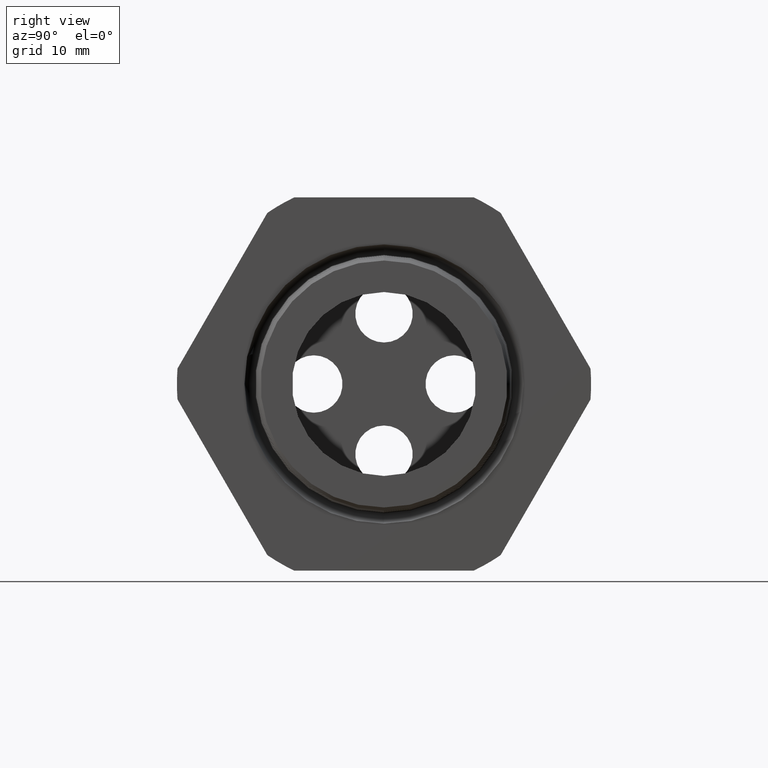
[diagram: clean part render]
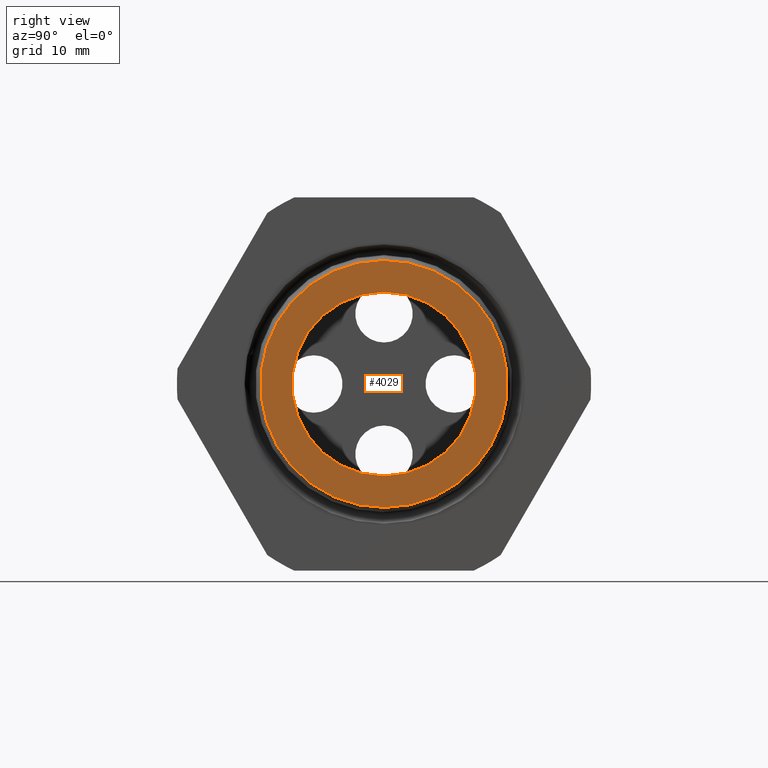
[diagram: same view with one face highlighted and labeled with its STEP entity id]
A machine part, right view. The second image highlights one B-rep face of the part: STEP entity #4029.
In plain terms, the highlighted planar face has unit normal (1, 0, 0).
Its self-contained STEP definition (entity closure, byte-faithful):
#41 = VERTEX_POINT ( 'NONE', #1183 ) ;
#45 = VERTEX_POINT ( 'NONE', #1177 ) ;
#55 = EDGE_CURVE ( 'NONE', #45, #41, #1226, .T. ) ;
#1177 = CARTESIAN_POINT ( 'NONE',  ( 0.1200000000000000200, 5.332067285935767100E-017, -0.4301292403640452600 ) ) ;
#1183 = CARTESIAN_POINT ( 'NONE',  ( 0.1200000000000000200, 0.0000000000000000000, 0.4301292403640452600 ) ) ;
#1223 = DIRECTION ( 'NONE',  ( 0.0000000000000000000, 0.0000000000000000000, -1.000000000000000000 ) ) ;
#1224 = DIRECTION ( 'NONE',  ( 1.000000000000000000, 0.0000000000000000000, 0.0000000000000000000 ) ) ;
#1225 = AXIS2_PLACEMENT_3D ( 'NONE', #1231, #1224, #1223 ) ;
#1226 = CIRCLE ( 'NONE', #1225, 0.4301292403640452600 ) ;
#1231 = CARTESIAN_POINT ( 'NONE',  ( 0.1200000000000000200, 0.0000000000000000000, 0.0000000000000000000 ) ) ;
#3279 = DIRECTION ( 'NONE',  ( 0.0000000000000000000, 0.0000000000000000000, -1.000000000000000000 ) ) ;
#3280 = DIRECTION ( 'NONE',  ( 1.000000000000000000, 0.0000000000000000000, 0.0000000000000000000 ) ) ;
#3281 = CARTESIAN_POINT ( 'NONE',  ( 0.1200000000000000200, 0.3204016610924743100, 0.0000000000000000000 ) ) ;
#3282 = AXIS2_PLACEMENT_3D ( 'NONE', #3281, #3280, #3279 ) ;
#3283 = FACE_BOUND ( 'NONE', #5562, .T. ) ;
#3284 = FACE_OUTER_BOUND ( 'NONE', #4028, .T. ) ;
#3289 = PLANE ( 'NONE',  #3282 ) ;
#4028 = EDGE_LOOP ( 'NONE', ( #5565, #5567 ) ) ;
#4029 = ADVANCED_FACE ( 'NONE', ( #3284, #3283 ), #3289, .T. ) ;
#4674 = CARTESIAN_POINT ( 'NONE',  ( 0.1200000000000000200, 4.135642411978520400E-017, -0.3204016610924743100 ) ) ;
#4702 = DIRECTION ( 'NONE',  ( 0.0000000000000000000, 0.0000000000000000000, -1.000000000000000000 ) ) ;
#4703 = DIRECTION ( 'NONE',  ( 1.000000000000000000, 0.0000000000000000000, 0.0000000000000000000 ) ) ;
#4704 = AXIS2_PLACEMENT_3D ( 'NONE', #4710, #4703, #4702 ) ;
#4705 = CIRCLE ( 'NONE', #4704, 0.3204016610924743100 ) ;
#4710 = CARTESIAN_POINT ( 'NONE',  ( 0.1200000000000000200, 0.0000000000000000000, 0.0000000000000000000 ) ) ;
#4715 = CARTESIAN_POINT ( 'NONE',  ( 0.1200000000000000200, 0.0000000000000000000, 0.3204016610924743100 ) ) ;
#4724 = DIRECTION ( 'NONE',  ( 0.0000000000000000000, 0.0000000000000000000, -1.000000000000000000 ) ) ;
#4725 = DIRECTION ( 'NONE',  ( 1.000000000000000000, 0.0000000000000000000, 0.0000000000000000000 ) ) ;
#4726 = CARTESIAN_POINT ( 'NONE',  ( 0.1200000000000000200, 0.0000000000000000000, 0.0000000000000000000 ) ) ;
#4727 = AXIS2_PLACEMENT_3D ( 'NONE', #4726, #4725, #4724 ) ;
#4728 = CIRCLE ( 'NONE', #4727, 0.3204016610924743100 ) ;
#4794 = DIRECTION ( 'NONE',  ( 0.0000000000000000000, 0.0000000000000000000, -1.000000000000000000 ) ) ;
#4795 = DIRECTION ( 'NONE',  ( 1.000000000000000000, 0.0000000000000000000, 0.0000000000000000000 ) ) ;
#4796 = CARTESIAN_POINT ( 'NONE',  ( 0.1200000000000000200, 0.0000000000000000000, 0.0000000000000000000 ) ) ;
#4797 = AXIS2_PLACEMENT_3D ( 'NONE', #4796, #4795, #4794 ) ;
#4802 = CIRCLE ( 'NONE', #4797, 0.4301292403640452600 ) ;
#5493 = VERTEX_POINT ( 'NONE', #4674 ) ;
#5502 = VERTEX_POINT ( 'NONE', #4715 ) ;
#5507 = EDGE_CURVE ( 'NONE', #5502, #5493, #4705, .T. ) ;
#5527 = EDGE_CURVE ( 'NONE', #5493, #5502, #4728, .T. ) ;
#5560 = ORIENTED_EDGE ( 'NONE', *, *, #5527, .F. ) ;
#5561 = ORIENTED_EDGE ( 'NONE', *, *, #5507, .F. ) ;
#5562 = EDGE_LOOP ( 'NONE', ( #5561, #5560 ) ) ;
#5564 = EDGE_CURVE ( 'NONE', #41, #45, #4802, .T. ) ;
#5565 = ORIENTED_EDGE ( 'NONE', *, *, #5564, .T. ) ;
#5567 = ORIENTED_EDGE ( 'NONE', *, *, #55, .T. ) ;